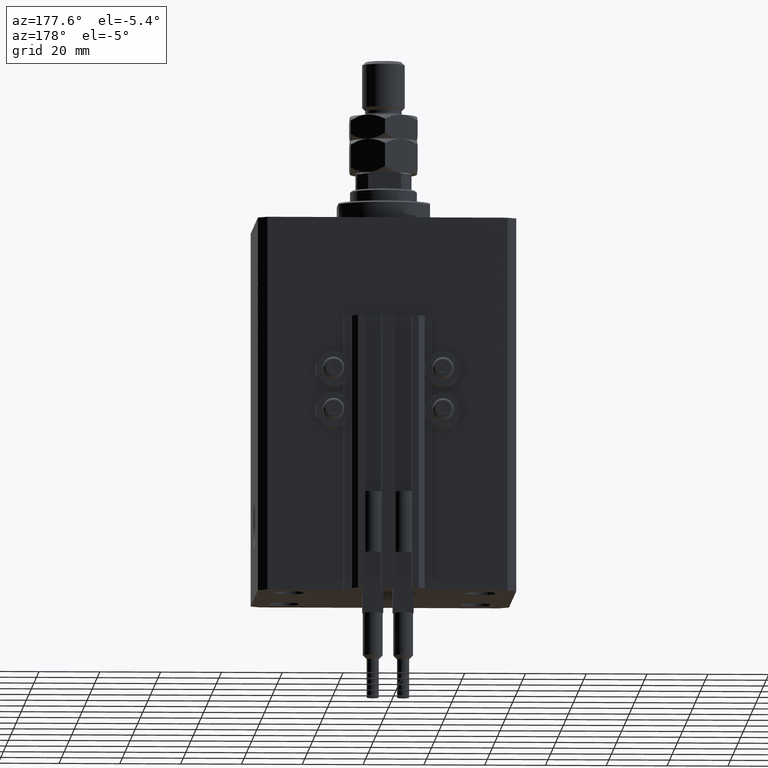
[diagram: clean part render]
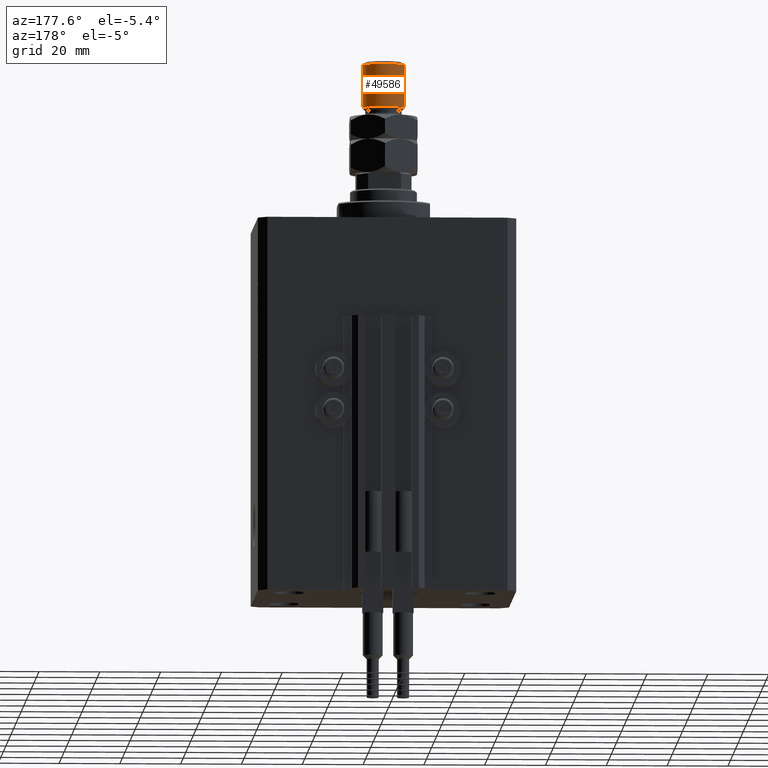
[diagram: same view with one face highlighted and labeled with its STEP entity id]
A machine part, auxiliary view. The second image highlights one B-rep face of the part: STEP entity #49586.
In plain terms, the highlighted cylindrical surface (edge-blend (fillet) strip) has radius 7 mm, axis along (-0, -0, -1).
Its self-contained STEP definition (entity closure, byte-faithful):
#8 = DIRECTION ( 'NONE',  ( -1.000000000000000000, 0.000000000000000000, 0.000000000000000000 ) ) ;
#910 = CARTESIAN_POINT ( 'NONE',  ( 7.000000000000000000, 8.572527594031473190E-16, 22.00000000000000355 ) ) ;
#4275 = CYLINDRICAL_SURFACE ( 'NONE', #43362, 7.000000000000000000 ) ;
#4594 = DIRECTION ( 'NONE',  ( 1.000000000000000000, 0.000000000000000000, 0.000000000000000000 ) ) ;
#6135 = AXIS2_PLACEMENT_3D ( 'NONE', #34491, #18968, #26979 ) ;
#6684 = VERTEX_POINT ( 'NONE', #46423 ) ;
#9599 = AXIS2_PLACEMENT_3D ( 'NONE', #11888, #11405, #4594 ) ;
#11405 = DIRECTION ( 'NONE',  ( -0.000000000000000000, -0.000000000000000000, 1.000000000000000000 ) ) ;
#11888 = CARTESIAN_POINT ( 'NONE',  ( 0.000000000000000000, 0.000000000000000000, 22.00000000000000355 ) ) ;
#12062 = EDGE_CURVE ( 'NONE', #36959, #12884, #35252, .T. ) ;
#12689 = CARTESIAN_POINT ( 'NONE',  ( -7.000000000000000000, 0.000000000000000000, 22.00000000000000355 ) ) ;
#12884 = VERTEX_POINT ( 'NONE', #910 ) ;
#18968 = DIRECTION ( 'NONE',  ( 0.000000000000000000, 0.000000000000000000, -1.000000000000000000 ) ) ;
#20801 = EDGE_CURVE ( 'NONE', #12884, #22236, #26421, .T. ) ;
#21901 = EDGE_CURVE ( 'NONE', #6684, #22236, #22325, .T. ) ;
#22236 = VERTEX_POINT ( 'NONE', #12689 ) ;
#22325 = LINE ( 'NONE', #49150, #41672 ) ;
#22764 = CARTESIAN_POINT ( 'NONE',  ( 7.000000000000000000, 8.572527594031473190E-16, 37.00000000000000000 ) ) ;
#23604 = CARTESIAN_POINT ( 'NONE',  ( 0.000000000000000000, 0.000000000000000000, 37.00000000000000000 ) ) ;
#24532 = CIRCLE ( 'NONE', #6135, 7.000000000000000000 ) ;
#26421 = CIRCLE ( 'NONE', #9599, 7.000000000000000000 ) ;
#26979 = DIRECTION ( 'NONE',  ( 1.000000000000000000, 0.000000000000000000, 0.000000000000000000 ) ) ;
#27253 = VECTOR ( 'NONE', #42560, 1000.000000000000000 ) ;
#30316 = DIRECTION ( 'NONE',  ( -0.000000000000000000, -0.000000000000000000, -1.000000000000000000 ) ) ;
#34491 = CARTESIAN_POINT ( 'NONE',  ( 0.000000000000000000, 0.000000000000000000, 35.99999999999999289 ) ) ;
#35252 = LINE ( 'NONE', #22764, #27253 ) ;
#35574 = ORIENTED_EDGE ( 'NONE', *, *, #20801, .T. ) ;
#36334 = ORIENTED_EDGE ( 'NONE', *, *, #21901, .F. ) ;
#36959 = VERTEX_POINT ( 'NONE', #40660 ) ;
#37440 = ORIENTED_EDGE ( 'NONE', *, *, #45103, .T. ) ;
#39530 = EDGE_LOOP ( 'NONE', ( #37440, #48858, #35574, #36334 ) ) ;
#40660 = CARTESIAN_POINT ( 'NONE',  ( 7.000000000000000000, 8.572527594031473190E-16, 35.99999999999999289 ) ) ;
#41672 = VECTOR ( 'NONE', #30316, 1000.000000000000000 ) ;
#42560 = DIRECTION ( 'NONE',  ( -0.000000000000000000, -0.000000000000000000, -1.000000000000000000 ) ) ;
#42893 = FACE_OUTER_BOUND ( 'NONE', #39530, .T. ) ;
#43362 = AXIS2_PLACEMENT_3D ( 'NONE', #23604, #45664, #8 ) ;
#45103 = EDGE_CURVE ( 'NONE', #6684, #36959, #24532, .T. ) ;
#45664 = DIRECTION ( 'NONE',  ( -0.000000000000000000, -0.000000000000000000, -1.000000000000000000 ) ) ;
#46423 = CARTESIAN_POINT ( 'NONE',  ( -7.000000000000000000, 0.000000000000000000, 35.99999999999999289 ) ) ;
#48858 = ORIENTED_EDGE ( 'NONE', *, *, #12062, .T. ) ;
#49150 = CARTESIAN_POINT ( 'NONE',  ( -7.000000000000000000, 0.000000000000000000, 37.00000000000000000 ) ) ;
#49586 = ADVANCED_FACE ( 'NONE', ( #42893 ), #4275, .T. ) ;